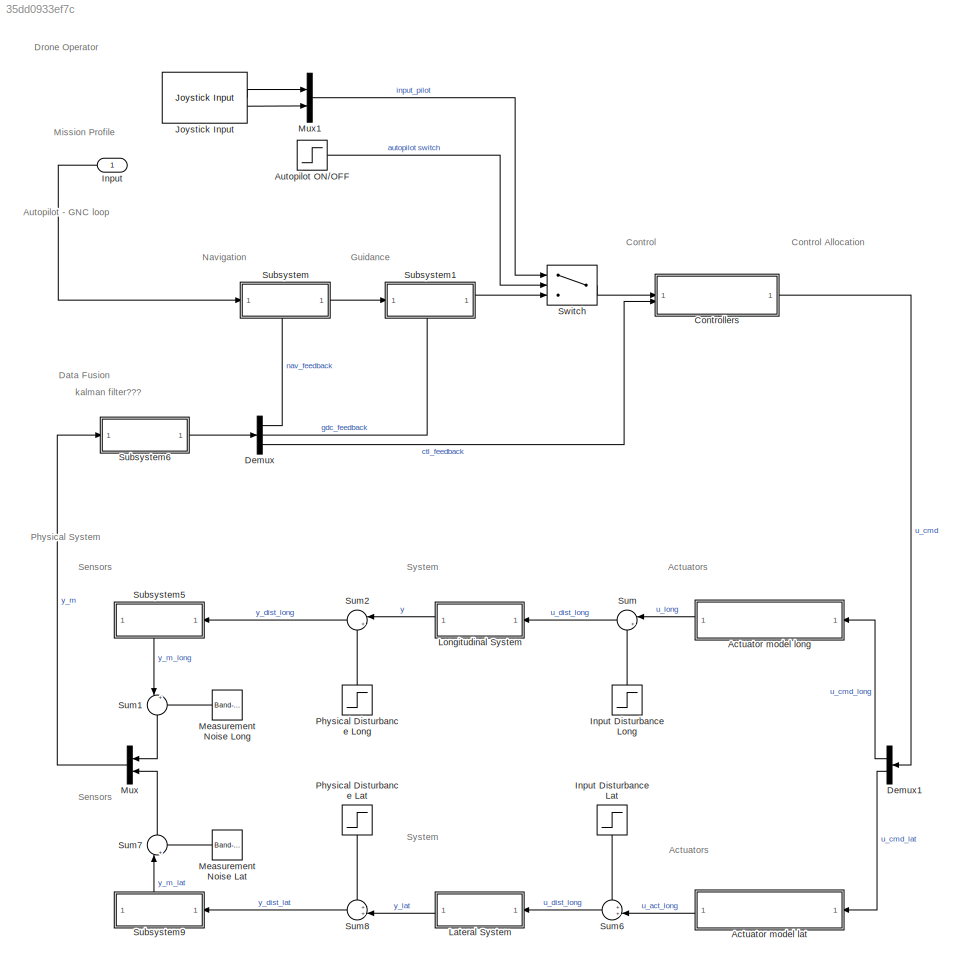
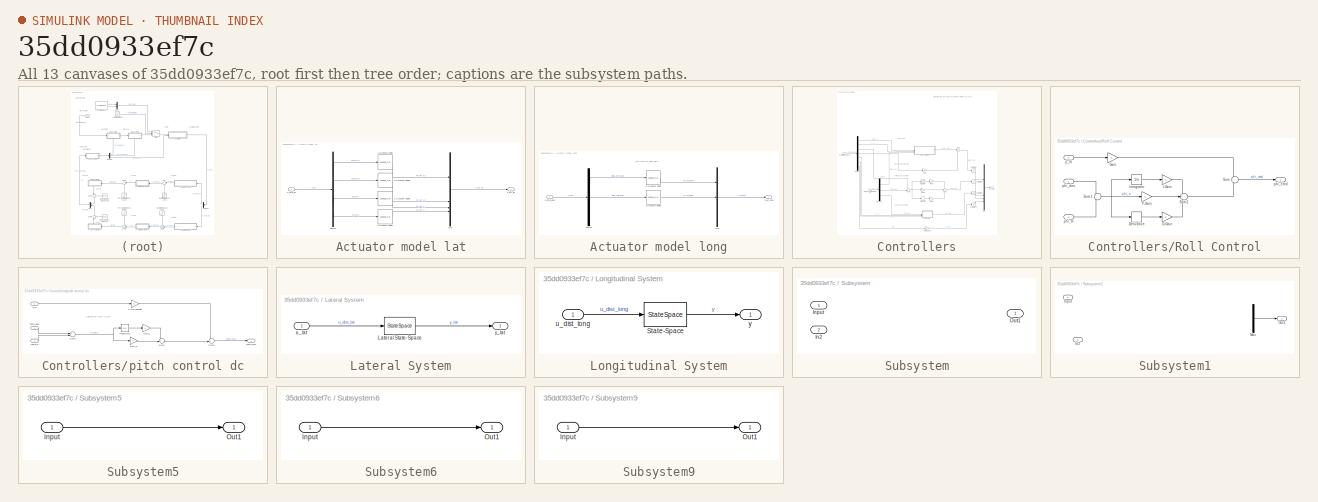
[diagram: thumbnail index - all 13 canvases of the model, root first then tree order]
MODEL slx_35dd0933ef7c
KIND model
CONFIG AbsTol = auto
CONFIG EnableMultiTasking = off
CONFIG FixedStep = auto
CONFIG MaxStep = auto
CONFIG MinStep = auto
CONFIG RelTol = 1e-3
CONFIG SampleTimeConstraint = Unconstrained
CONFIG SolverName = VariableStepAuto
CONFIG StartTime = 0.0
CONFIG StopTime = 10.0
BLOCK [SubSystem] Actuator model lat
BLOCK [Lookup_n-D] Actuator model lat/1-D Lookup Table
  BreakpointsForDimension1 = [-5:5]
  InputPortMap = u0
  InternalRulePriority = Speed
  NumberOfTableDimensions = 1
  RndMeth = Simplest
  Table = tanh([-5:5])
BLOCK [Lookup_n-D] Actuator model lat/1-D Lookup Table1
  BreakpointsForDimension1 = [-5:5]
  InputPortMap = u0
  InternalRulePriority = Speed
  NumberOfTableDimensions = 1
  RndMeth = Simplest
  Table = tanh([-5:5])
BLOCK [Lookup_n-D] Actuator model lat/1-D Lookup Table2
  BreakpointsForDimension1 = [-5:5]
  InputPortMap = u0
  InternalRulePriority = Speed
  NumberOfTableDimensions = 1
  RndMeth = Simplest
  Table = tanh([-5:5])
BLOCK [Lookup_n-D] Actuator model lat/1-D Lookup Table3
  BreakpointsForDimension1 = [-5:5]
  InputPortMap = u0
  InternalRulePriority = Speed
  NumberOfTableDimensions = 1
  RndMeth = Simplest
  Table = tanh([-5:5])
BLOCK [Demux] Actuator model lat/Demux
BLOCK [Mux] Actuator model lat/Mux
  DisplayOption = bar
BLOCK [Outport] Actuator model lat/u_act_lat
BLOCK [Inport] Actuator model lat/u_cmd_lat
BLOCK [SubSystem] Actuator model long
BLOCK [Lookup_n-D] Actuator model long/1-D Lookup Table
  BreakpointsForDimension1 = [-5:5]
  InputPortMap = u0
  InternalRulePriority = Speed
  NumberOfTableDimensions = 1
  RndMeth = Simplest
  Table = tanh([-5:5])
BLOCK [Lookup_n-D] Actuator model long/1-D Lookup Table1
  BreakpointsForDimension1 = [-5:5]
  InputPortMap = u0
  InternalRulePriority = Speed
  NumberOfTableDimensions = 1
  RndMeth = Simplest
  Table = tanh([-5:5])
BLOCK [Demux] Actuator model long/Demux
  Outputs = 3
BLOCK [Mux] Actuator model long/Mux
  DisplayOption = bar
  Inputs = 3
BLOCK [Outport] Actuator model long/u_act_long
BLOCK [Inport] Actuator model long/u_cmd_long
BLOCK [Step] Autopilot ON//OFF
  SampleTime = 0
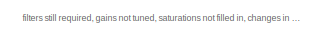
[diagram: Controllers - part 1/2, top right region]
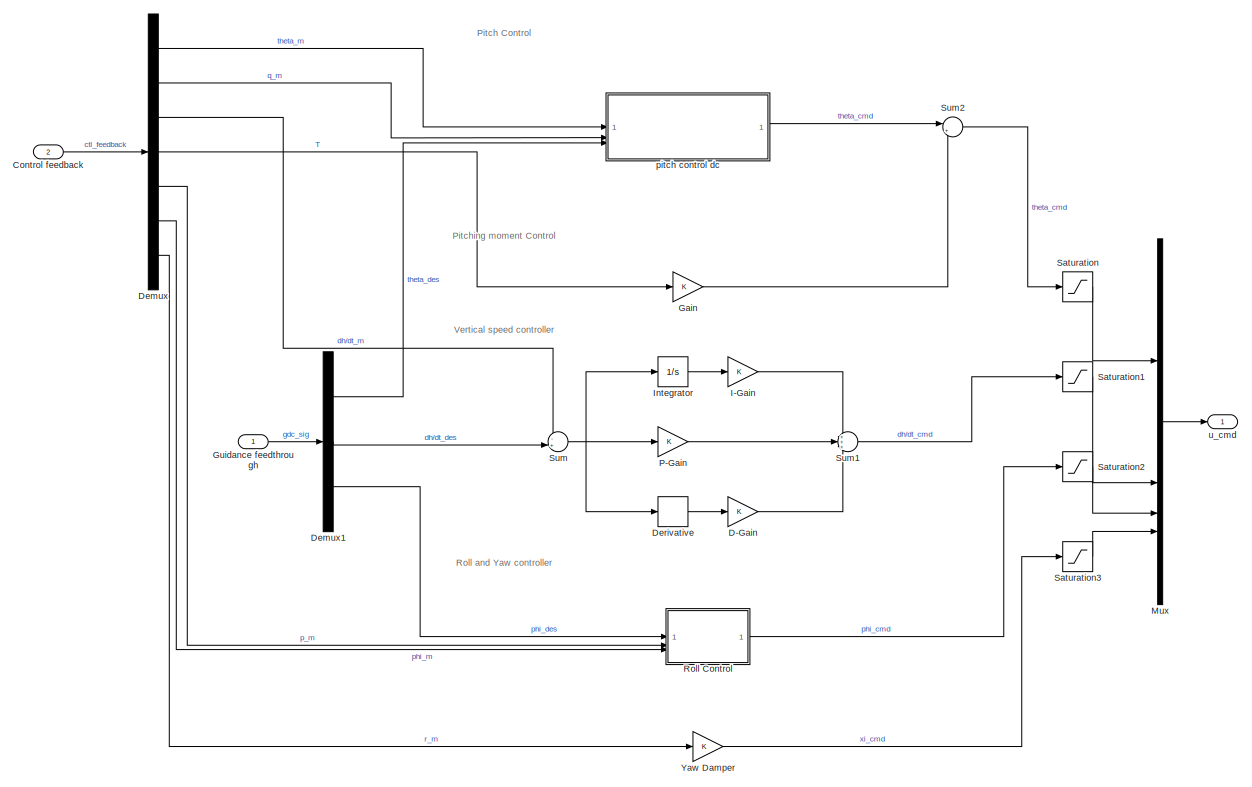
[diagram: Controllers - part 2/2, full width, middle band]
BLOCK [SubSystem] Controllers
BLOCK [Inport] Controllers/Control feedback
  Port = 2
BLOCK [Gain] Controllers/D-Gain
BLOCK [Demux] Controllers/Demux
  Outputs = 7
BLOCK [Demux] Controllers/Demux1
  Outputs = 3
BLOCK [Derivative] Controllers/Derivative
BLOCK [Gain] Controllers/Gain
BLOCK [Inport] Controllers/Guidance feedthrough
BLOCK [Gain] Controllers/I-Gain
BLOCK [Integrator] Controllers/Integrator
BLOCK [Mux] Controllers/Mux
  DisplayOption = bar
BLOCK [Gain] Controllers/P-Gain
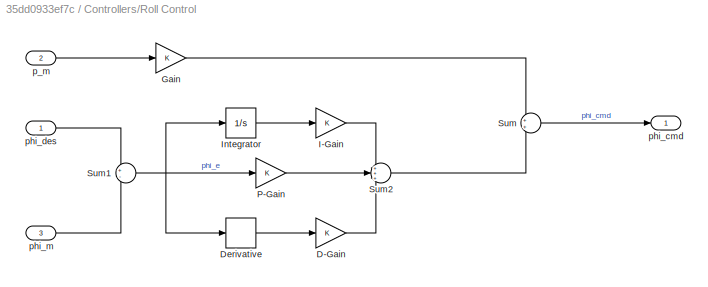
BLOCK [SubSystem] Controllers/Roll Control
BLOCK [Gain] Controllers/Roll Control/D-Gain
BLOCK [Derivative] Controllers/Roll Control/Derivative
BLOCK [Gain] Controllers/Roll Control/Gain
BLOCK [Gain] Controllers/Roll Control/I-Gain
BLOCK [Integrator] Controllers/Roll Control/Integrator
BLOCK [Gain] Controllers/Roll Control/P-Gain
BLOCK [Sum] Controllers/Roll Control/Sum
BLOCK [Sum] Controllers/Roll Control/Sum1
  Inputs = +-
BLOCK [Sum] Controllers/Roll Control/Sum2
  Inputs = +++
BLOCK [Inport] Controllers/Roll Control/p_m
  Port = 2
BLOCK [Outport] Controllers/Roll Control/phi_cmd
BLOCK [Inport] Controllers/Roll Control/phi_des
BLOCK [Inport] Controllers/Roll Control/phi_m
  Port = 3
BLOCK [Saturate] Controllers/Saturation
BLOCK [Saturate] Controllers/Saturation1
BLOCK [Saturate] Controllers/Saturation2
BLOCK [Saturate] Controllers/Saturation3
BLOCK [Sum] Controllers/Sum
  Inputs = -+|
BLOCK [Sum] Controllers/Sum1
  Inputs = +++
BLOCK [Sum] Controllers/Sum2
  Inputs = |++
BLOCK [Gain] Controllers/Yaw Damper
BLOCK [SubSystem] Controllers/pitch control dc
BLOCK [Gain] Controllers/pitch control dc/Gain_I
BLOCK [Gain] Controllers/pitch control dc/Gain_P
BLOCK [Integrator] Controllers/pitch control dc/Integrator2
BLOCK [Gain] Controllers/pitch control dc/Pitch damper
BLOCK [Sum] Controllers/pitch control dc/Sum1
  Inputs = ++|
BLOCK [Sum] Controllers/pitch control dc/Sum2
  Inputs = ++|
BLOCK [Sum] Controllers/pitch control dc/Sum3
  Inputs = +-
BLOCK [Inport] Controllers/pitch control dc/q_m
  Port = 2
BLOCK [Outport] Controllers/pitch control dc/theta_cmd
BLOCK [Inport] Controllers/pitch control dc/theta_des
  Port = 3
BLOCK [Inport] Controllers/pitch control dc/theta_m
BLOCK [Outport] Controllers/u_cmd
BLOCK [Demux] Demux
  Outputs = 3
BLOCK [Demux] Demux1
  Outputs = 2
BLOCK [Inport] Input
BLOCK [Step] Input Disturbance Lat
  NameLocation = right
  SampleTime = 0
BLOCK [Step] Input Disturbance Long
  NameLocation = right
  SampleTime = 0
BLOCK [Reference] Joystick Input  REF=vrlib/Joystick Input
  SourceBlock = vrlib/Joystick Input
  SourceType = Joystick Input
BLOCK [SubSystem] Lateral System
BLOCK [StateSpace] Lateral System/Lateral State-Space
  A = A_lat
  B = B_lat
  C = C_lat
  D = D_lat
  InitialCondition = 0
BLOCK [Inport] Lateral System/u_lat
BLOCK [Outport] Lateral System/y_lat
BLOCK [SubSystem] Longitudinal System
BLOCK [StateSpace] Longitudinal System/State-Space
  A = A_long
  B = B_long
  C = C_long
  D = D_long
  InitialCondition = 0
BLOCK [Inport] Longitudinal System/u_dist_long
BLOCK [Outport] Longitudinal System/y
BLOCK [Reference] Measurement Noise Lat  REF=simulink/Sources/Band-Limited
White Noise
  SourceBlock = simulink/Sources/Band-Limited\nWhite Noise
  SourceType = Band-Limited White Noise.
BLOCK [Reference] Measurement Noise Long  REF=simulink/Sources/Band-Limited
White Noise
  NameLocation = top
  SourceBlock = simulink/Sources/Band-Limited\nWhite Noise
  SourceType = Band-Limited White Noise.
BLOCK [Mux] Mux
  DisplayOption = bar
  Inputs = 2
BLOCK [Mux] Mux1
  DisplayOption = bar
  Inputs = 2
BLOCK [Step] Physical Disturbance Lat
  NameLocation = right
  SampleTime = 0
BLOCK [Step] Physical Disturbance Long
  NameLocation = right
  SampleTime = 0
BLOCK [SubSystem] Subsystem
  PortSchema = {"entries":[{"content":{"sides":[{"content":{"connectorIds":["In1"]},"type":"ConnectorPlacement.EquallySpacedRectSide","uuid":"b55c321e-6281-45a5-aa96-a8b4b9a904a2"},{"content":{"connectorIds":["Out1"],"side":"RIGHT"},"type":"ConnectorPlacement.EquallySpacedRectSide","uuid":"1acfb3ee-82d1-4624-97ca-4ff12c3c13a9"},{"content":{"side":"TOP"},"type":"ConnectorPlacement.EquallySpacedRectSide","uuid":"e...<+371ch>
BLOCK [Inport] Subsystem/In2
  Port = 2
BLOCK [Inport] Subsystem/Input
BLOCK [Outport] Subsystem/Out1
BLOCK [SubSystem] Subsystem1
  PortSchema = {"entries":[{"content":{"sides":[{"content":{"connectorIds":["In1"]},"type":"ConnectorPlacement.EquallySpacedRectSide","uuid":"2eb23210-3dea-4b77-a9d4-7110bad0c58c"},{"content":{"connectorIds":["Out1"],"side":"RIGHT"},"type":"ConnectorPlacement.EquallySpacedRectSide","uuid":"94c709a1-e7e1-4346-819b-fd02519f91fd"},{"content":{"connectorIds":[],"side":"TOP"},"type":"ConnectorPlacement.EquallySpacedR...<+389ch>
BLOCK [Inport] Subsystem1/In2
  Port = 2
BLOCK [Inport] Subsystem1/Input
BLOCK [Mux] Subsystem1/Mux
  DisplayOption = bar
  Inputs = 3
BLOCK [Outport] Subsystem1/Out1
BLOCK [SubSystem] Subsystem5
  PortSchema = {"entries":[{"content":{"sides":[{"content":{"connectorIds":["In1"]},"type":"ConnectorPlacement.EquallySpacedRectSide","uuid":"2eb23210-3dea-4b77-a9d4-7110bad0c58c"},{"content":{"connectorIds":[],"side":"RIGHT"},"type":"ConnectorPlacement.EquallySpacedRectSide","uuid":"94c709a1-e7e1-4346-819b-fd02519f91fd"},{"content":{"connectorIds":[],"side":"TOP"},"type":"ConnectorPlacement.EquallySpacedRectSid...<+384ch>
BLOCK [Inport] Subsystem5/Input
BLOCK [Outport] Subsystem5/Out1
BLOCK [SubSystem] Subsystem6
BLOCK [Inport] Subsystem6/Input
BLOCK [Outport] Subsystem6/Out1
BLOCK [SubSystem] Subsystem9
  PortSchema = {"entries":[{"content":{"sides":[{"content":{"connectorIds":["In1"]},"type":"ConnectorPlacement.EquallySpacedRectSide","uuid":"2eb23210-3dea-4b77-a9d4-7110bad0c58c"},{"content":{"side":"RIGHT"},"type":"ConnectorPlacement.EquallySpacedRectSide","uuid":"94c709a1-e7e1-4346-819b-fd02519f91fd"},{"content":{"connectorIds":["Out1"],"side":"TOP"},"type":"ConnectorPlacement.EquallySpacedRectSide","uuid":"5...<+348ch>
BLOCK [Inport] Subsystem9/Input
BLOCK [Outport] Subsystem9/Out1
BLOCK [Sum] Sum
  Inputs = |++
BLOCK [Sum] Sum1
  Inputs = |++
  NameLocation = left
BLOCK [Sum] Sum2
  Inputs = |++
BLOCK [Sum] Sum6
  Inputs = ++|
BLOCK [Sum] Sum7
  Inputs = |++
  NameLocation = right
BLOCK [Sum] Sum8
  Inputs = ++|
BLOCK [Switch] Switch
  Criteria = u2 > Threshold
  InputSameDT = off
  SaturateOnIntegerOverflow = off
ANNOTATION (root): kalman filter???
ANNOTATION (root): Actuators
ANNOTATION (root): Autopilot - GNC loop
ANNOTATION (root): Control
ANNOTATION (root): Control Allocation
ANNOTATION (root): Data Fusion
ANNOTATION (root): Drone Operator
ANNOTATION (root): Guidance
ANNOTATION (root): Mission Profile
ANNOTATION (root): Navigation
ANNOTATION (root): Physical System
ANNOTATION (root): Sensors
ANNOTATION (root): System
ANNOTATION Actuator model long: put in look up table data
ANNOTATION Controllers: filters still required, gains not tuned, saturations not filled in, changes in pitch ctrl req
ANNOTATION Controllers: Pitch Control
ANNOTATION Controllers: Pitching moment Control
ANNOTATION Controllers: Roll and Yaw controller
ANNOTATION Controllers: Vertical speed controller
ANNOTATION Controllers/pitch control dc: Controller Duty Cycle
LINE Actuator model lat/1-D Lookup Table1:1 -> Actuator model lat/Mux:4
LINE Actuator model lat/1-D Lookup Table2:1 -> Actuator model lat/Mux:2
LINE Actuator model lat/1-D Lookup Table3:1 -> Actuator model lat/Mux:3
LINE Actuator model lat/1-D Lookup Table:1 -> Actuator model lat/Mux:1
LINE Actuator model lat/Demux:1 -> Actuator model lat/1-D Lookup Table:1
LINE Actuator model lat/Demux:2 -> Actuator model lat/1-D Lookup Table2:1
LINE Actuator model lat/Demux:3 -> Actuator model lat/1-D Lookup Table3:1
LINE Actuator model lat/Demux:4 -> Actuator model lat/1-D Lookup Table1:1
LINE Actuator model lat/Mux:1 -> Actuator model lat/u_act_lat:1
LINE Actuator model lat/u_cmd_lat:1 -> Actuator model lat/Demux:1
LINE Actuator model lat:1 -> Sum6:2
LINE Actuator model long/1-D Lookup Table1:1 -> Actuator model long/Mux:2
LINE Actuator model long/1-D Lookup Table:1 -> Actuator model long/Mux:1
LINE Actuator model long/Demux:1 -> Actuator model long/1-D Lookup Table:1
LINE Actuator model long/Demux:2 -> Actuator model long/1-D Lookup Table1:1
LINE Actuator model long/Mux:1 -> Actuator model long/u_act_long:1
LINE Actuator model long/u_cmd_long:1 -> Actuator model long/Demux:1
LINE Actuator model long:1 -> Sum:1
LINE Autopilot ON//OFF:1 -> Switch:2
LINE Controllers/Control feedback:1 -> Controllers/Demux:1
LINE Controllers/D-Gain:1 -> Controllers/Sum1:3
LINE Controllers/Demux1:1 -> Controllers/pitch control dc:3
LINE Controllers/Demux1:2 -> Controllers/Sum:2
LINE Controllers/Demux1:3 -> Controllers/Roll Control:1
LINE Controllers/Demux:1 -> Controllers/pitch control dc:1
LINE Controllers/Demux:2 -> Controllers/pitch control dc:2
LINE Controllers/Demux:3 -> Controllers/Sum:1
LINE Controllers/Demux:4 -> Controllers/Gain:1
LINE Controllers/Demux:5 -> Controllers/Roll Control:2
LINE Controllers/Demux:6 -> Controllers/Roll Control:3
LINE Controllers/Demux:7 -> Controllers/Yaw Damper:1
LINE Controllers/Derivative:1 -> Controllers/D-Gain:1
LINE Controllers/Gain:1 -> Controllers/Sum2:2
LINE Controllers/Guidance feedthrough:1 -> Controllers/Demux1:1
LINE Controllers/I-Gain:1 -> Controllers/Sum1:1
LINE Controllers/Integrator:1 -> Controllers/I-Gain:1
LINE Controllers/Mux:1 -> Controllers/u_cmd:1
LINE Controllers/P-Gain:1 -> Controllers/Sum1:2
LINE Controllers/Roll Control/D-Gain:1 -> Controllers/Roll Control/Sum2:3
LINE Controllers/Roll Control/Derivative:1 -> Controllers/Roll Control/D-Gain:1
LINE Controllers/Roll Control/Gain:1 -> Controllers/Roll Control/Sum:1
LINE Controllers/Roll Control/I-Gain:1 -> Controllers/Roll Control/Sum2:1
LINE Controllers/Roll Control/Integrator:1 -> Controllers/Roll Control/I-Gain:1
LINE Controllers/Roll Control/P-Gain:1 -> Controllers/Roll Control/Sum2:2
NET Controllers/Roll Control/Sum1:1 -> Controllers/Roll Control/Derivative:1, Controllers/Roll Control/Integrator:1, Controllers/Roll Control/P-Gain:1
LINE Controllers/Roll Control/Sum2:1 -> Controllers/Roll Control/Sum:2
LINE Controllers/Roll Control/Sum:1 -> Controllers/Roll Control/phi_cmd:1
LINE Controllers/Roll Control/p_m:1 -> Controllers/Roll Control/Gain:1
LINE Controllers/Roll Control/phi_des:1 -> Controllers/Roll Control/Sum1:1
LINE Controllers/Roll Control/phi_m:1 -> Controllers/Roll Control/Sum1:2
LINE Controllers/Roll Control:1 -> Controllers/Saturation2:1
LINE Controllers/Saturation1:1 -> Controllers/Mux:2
LINE Controllers/Saturation2:1 -> Controllers/Mux:3
LINE Controllers/Saturation3:1 -> Controllers/Mux:4
LINE Controllers/Saturation:1 -> Controllers/Mux:1
LINE Controllers/Sum1:1 -> Controllers/Saturation1:1
LINE Controllers/Sum2:1 -> Controllers/Saturation:1
NET Controllers/Sum:1 -> Controllers/Derivative:1, Controllers/Integrator:1, Controllers/P-Gain:1
LINE Controllers/Yaw Damper:1 -> Controllers/Saturation3:1
LINE Controllers/pitch control dc/Gain_I:1 -> Controllers/pitch control dc/Sum1:1
LINE Controllers/pitch control dc/Gain_P:1 -> Controllers/pitch control dc/Sum1:2
LINE Controllers/pitch control dc/Integrator2:1 -> Controllers/pitch control dc/Gain_I:1
LINE Controllers/pitch control dc/Pitch damper:1 -> Controllers/pitch control dc/Sum2:1
LINE Controllers/pitch control dc/Sum1:1 -> Controllers/pitch control dc/Sum2:2
LINE Controllers/pitch control dc/Sum2:1 -> Controllers/pitch control dc/theta_cmd:1
NET Controllers/pitch control dc/Sum3:1 -> Controllers/pitch control dc/Gain_P:1, Controllers/pitch control dc/Integrator2:1
LINE Controllers/pitch control dc/q_m:1 -> Controllers/pitch control dc/Pitch damper:1
LINE Controllers/pitch control dc/theta_des:1 -> Controllers/pitch control dc/Sum3:1
LINE Controllers/pitch control dc/theta_m:1 -> Controllers/pitch control dc/Sum3:2
LINE Controllers/pitch control dc:1 -> Controllers/Sum2:1
LINE Controllers:1 -> Demux1:1
LINE Demux1:1 -> Actuator model long:1
LINE Demux1:2 -> Actuator model lat:1
LINE Demux:1 -> Subsystem:2
LINE Demux:2 -> Subsystem1:2
LINE Demux:3 -> Controllers:2
LINE Input Disturbance Lat:1 -> Sum6:1
LINE Input Disturbance Long:1 -> Sum:2
LINE Input:1 -> Subsystem:1
LINE Joystick Input:1 -> Mux1:1
LINE Joystick Input:2 -> Mux1:2
LINE Lateral System/Lateral State-Space:1 -> Lateral System/y_lat:1
LINE Lateral System/u_lat:1 -> Lateral System/Lateral State-Space:1
LINE Lateral System:1 -> Sum8:2
LINE Longitudinal System/State-Space:1 -> Longitudinal System/y:1
LINE Longitudinal System/u_dist_long:1 -> Longitudinal System/State-Space:1
LINE Longitudinal System:1 -> Sum2:1
LINE Measurement Noise Lat:1 -> Sum7:2
LINE Measurement Noise Long:1 -> Sum1:2
LINE Mux1:1 -> Switch:1
LINE Mux:1 -> Subsystem6:1
LINE Physical Disturbance Lat:1 -> Sum8:1
LINE Physical Disturbance Long:1 -> Sum2:2
LINE Subsystem1/Mux:1 -> Subsystem1/Out1:1
LINE Subsystem1:1 -> Switch:3
LINE Subsystem5/Input:1 -> Subsystem5/Out1:1
LINE Subsystem5:1 -> Sum1:1
LINE Subsystem6/Input:1 -> Subsystem6/Out1:1
LINE Subsystem6:1 -> Demux:1
LINE Subsystem9/Input:1 -> Subsystem9/Out1:1
LINE Subsystem9:1 -> Sum7:1
LINE Subsystem:1 -> Subsystem1:1
LINE Sum1:1 -> Mux:1
LINE Sum2:1 -> Subsystem5:1
LINE Sum6:1 -> Lateral System:1
LINE Sum7:1 -> Mux:2
LINE Sum8:1 -> Subsystem9:1
LINE Sum:1 -> Longitudinal System:1
LINE Switch:1 -> Controllers:1
note: NET lines group one-source signal fan-out (src -> all destinations, sorted); 1:1 wires keep LINE
